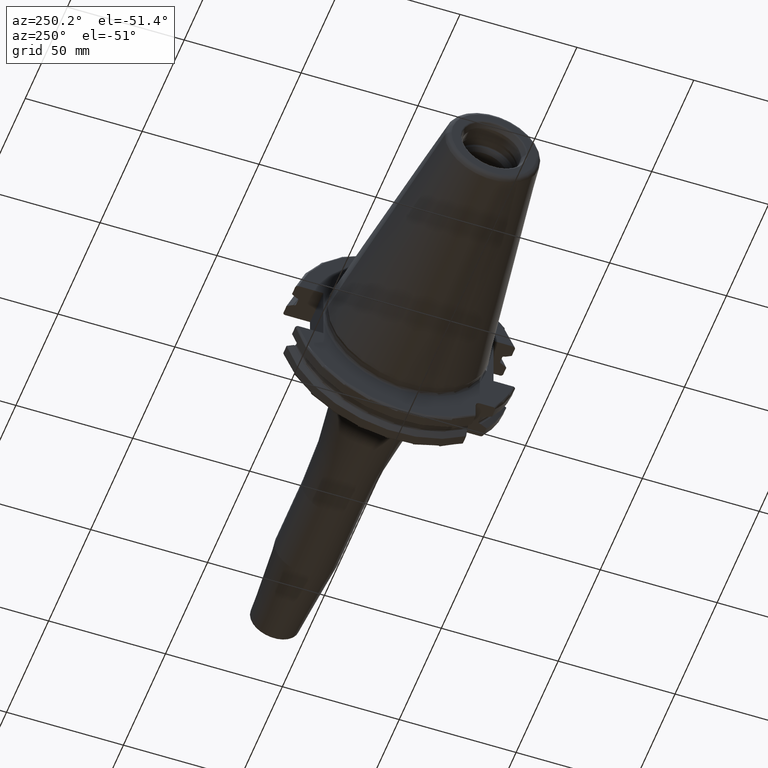
[diagram: clean part render]
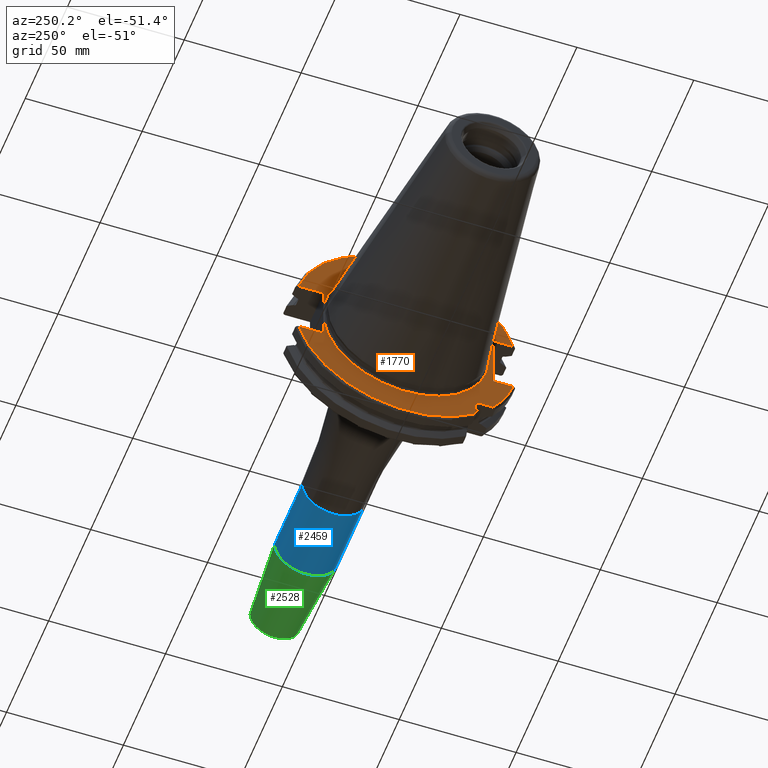
[diagram: same view with three faces highlighted in distinct colors, each labeled with its STEP entity id]
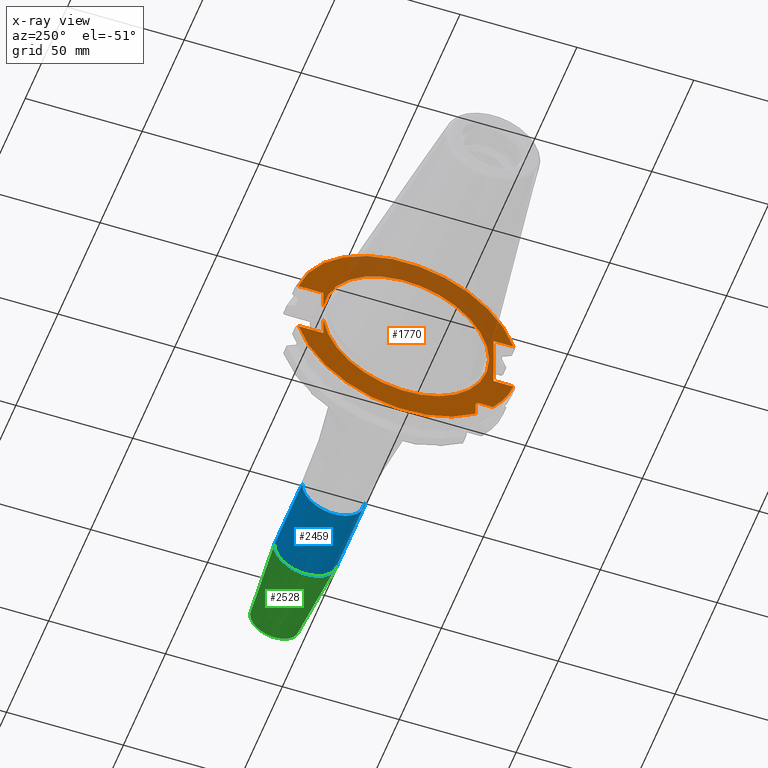
[diagram: x-ray of the same camera — body ghosted, the three highlighted faces saturated]
A machine part, auxiliary view with three faces highlighted in distinct colors.
The next image is the same camera in x-ray (body ghosted, the three faces saturated) — at least one of them is partly hidden behind the body in this view.
Their STEP definitions:

[orange] entity #1770 — the highlighted planar face has unit normal (1, 0, 0).
#117=CARTESIAN_POINT('',(3.2E0,0.E0,0.E0));
#118=DIRECTION('',(-1.E0,0.E0,0.E0));
#119=DIRECTION('',(0.E0,9.922698524245E-1,-1.240989120402E-1));
#120=AXIS2_PLACEMENT_3D('',#117,#118,#119);
#177=CARTESIAN_POINT('',(3.2E0,-3.16E1,-3.16E1));
#178=DIRECTION('',(1.E0,0.E0,0.E0));
#179=DIRECTION('',(0.E0,1.E0,0.E0));
#180=AXIS2_PLACEMENT_3D('',#177,#178,#179);
#182=DIRECTION('',(0.E0,-1.E0,0.E0));
#183=VECTOR('',#182,5.653810627237E0);
#184=CARTESIAN_POINT('',(3.2E0,-3.16E1,-2.985E1));
#185=LINE('',#184,#183);
#186=DIRECTION('',(0.E0,0.E0,1.E0));
#187=VECTOR('',#186,5.653810627237E0);
#188=CARTESIAN_POINT('',(3.2E0,-2.985E1,-3.725381062724E1));
#189=LINE('',#188,#187);
#190=CARTESIAN_POINT('',(3.2E0,0.E0,0.E0));
#191=DIRECTION('',(-1.E0,0.E0,0.E0));
#192=DIRECTION('',(0.E0,9.627964123359E-1,-2.702278083268E-1));
#193=AXIS2_PLACEMENT_3D('',#190,#191,#192);
#195=DIRECTION('',(0.E0,-1.E0,0.E0));
#196=VECTOR('',#195,1.066149373389E1);
#197=CARTESIAN_POINT('',(3.2E0,4.596149373389E1,-1.29E1));
#198=LINE('',#197,#196);
#199=DIRECTION('',(0.E0,0.E0,-1.E0));
#200=VECTOR('',#199,8.485181204172E0);
#201=CARTESIAN_POINT('',(3.2E0,3.53E1,-4.414818795828E0));
#202=LINE('',#201,#200);
#203=DIRECTION('',(0.E0,0.E0,-1.E0));
#204=VECTOR('',#203,8.485181204172E0);
#205=CARTESIAN_POINT('',(3.2E0,3.53E1,1.29E1));
#206=LINE('',#205,#204);
#207=DIRECTION('',(0.E0,-1.E0,0.E0));
#208=VECTOR('',#207,1.066149373389E1);
#209=CARTESIAN_POINT('',(3.2E0,4.596149373389E1,1.29E1));
#210=LINE('',#209,#208);
#211=CARTESIAN_POINT('',(3.2E0,0.E0,0.E0));
#212=DIRECTION('',(1.E0,0.E0,0.E0));
#213=DIRECTION('',(0.E0,9.627964123359E-1,2.702278083268E-1));
#214=AXIS2_PLACEMENT_3D('',#211,#212,#213);
#216=DIRECTION('',(0.E0,1.E0,0.E0));
#217=VECTOR('',#216,8.461493733886E0);
#218=CARTESIAN_POINT('',(3.2E0,-4.596149373389E1,1.29E1));
#219=LINE('',#218,#217);
#220=DIRECTION('',(0.E0,0.E0,1.E0));
#221=VECTOR('',#220,2.58E1);
#222=CARTESIAN_POINT('',(3.2E0,-3.75E1,-1.29E1));
#223=LINE('',#222,#221);
#224=DIRECTION('',(0.E0,1.E0,0.E0));
#225=VECTOR('',#224,8.461493733886E0);
#226=CARTESIAN_POINT('',(3.2E0,-4.596149373389E1,-1.29E1));
#227=LINE('',#226,#225);
#228=CARTESIAN_POINT('',(3.2E0,0.E0,0.E0));
#229=DIRECTION('',(-1.E0,0.E0,0.E0));
#230=DIRECTION('',(0.E0,-7.803888060170E-1,-6.252945797329E-1));
#231=AXIS2_PLACEMENT_3D('',#228,#229,#230);
#279=CARTESIAN_POINT('',(3.2E0,-3.725381062724E1,-2.985E1));
#891=CARTESIAN_POINT('',(3.2E0,0.E0,0.E0));
#892=DIRECTION('',(1.E0,0.E0,0.E0));
#893=DIRECTION('',(0.E0,9.922698524245E-1,1.240989120402E-1));
#894=AXIS2_PLACEMENT_3D('',#891,#892,#893);
#1238=CARTESIAN_POINT('',(3.2E0,-3.5575E1,0.E0));
#1240=VERTEX_POINT('',#1238);
#1372=CARTESIAN_POINT('',(3.2E0,4.596149373389E1,1.29E1));
#1373=CARTESIAN_POINT('',(3.2E0,3.53E1,1.29E1));
#1374=VERTEX_POINT('',#1372);
#1375=VERTEX_POINT('',#1373);
#1376=CARTESIAN_POINT('',(3.2E0,3.53E1,4.414818795828E0));
#1377=VERTEX_POINT('',#1376);
#1378=CARTESIAN_POINT('',(3.2E0,3.53E1,-4.414818795828E0));
#1379=CARTESIAN_POINT('',(3.2E0,3.53E1,-1.29E1));
#1380=VERTEX_POINT('',#1378);
#1381=VERTEX_POINT('',#1379);
#1382=CARTESIAN_POINT('',(3.2E0,4.596149373389E1,-1.29E1));
#1383=VERTEX_POINT('',#1382);
#1384=CARTESIAN_POINT('',(3.2E0,-4.596149373389E1,-1.29E1));
#1385=CARTESIAN_POINT('',(3.2E0,-3.75E1,-1.29E1));
#1386=VERTEX_POINT('',#1384);
#1387=VERTEX_POINT('',#1385);
#1388=CARTESIAN_POINT('',(3.2E0,-3.75E1,1.29E1));
#1389=VERTEX_POINT('',#1388);
#1390=CARTESIAN_POINT('',(3.2E0,-4.596149373389E1,1.29E1));
#1391=VERTEX_POINT('',#1390);
#1423=CARTESIAN_POINT('',(3.2E0,-2.985E1,-3.725381062724E1));
#1424=VERTEX_POINT('',#1423);
#1429=CARTESIAN_POINT('',(3.2E0,-2.985E1,-3.16E1));
#1430=CARTESIAN_POINT('',(3.2E0,-3.16E1,-2.985E1));
#1431=VERTEX_POINT('',#1429);
#1432=VERTEX_POINT('',#1430);
#1451=VERTEX_POINT('',#279);
#1738=CARTESIAN_POINT('',(3.2E0,0.E0,0.E0));
#1739=DIRECTION('',(1.E0,0.E0,0.E0));
#1740=DIRECTION('',(0.E0,-1.E0,0.E0));
#1741=AXIS2_PLACEMENT_3D('',#1738,#1739,#1740);
#1742=PLANE('',#1741);
#1744=ORIENTED_EDGE('',*,*,#1743,.F.);
#1745=ORIENTED_EDGE('',*,*,#1731,.F.);
#1746=ORIENTED_EDGE('',*,*,#1719,.F.);
#1748=ORIENTED_EDGE('',*,*,#1747,.F.);
#1750=ORIENTED_EDGE('',*,*,#1749,.T.);
#1751=ORIENTED_EDGE('',*,*,#1645,.F.);
#1752=ORIENTED_EDGE('',*,*,#1626,.T.);
#1754=ORIENTED_EDGE('',*,*,#1753,.F.);
#1755=ORIENTED_EDGE('',*,*,#1640,.F.);
#1757=ORIENTED_EDGE('',*,*,#1756,.F.);
#1759=ORIENTED_EDGE('',*,*,#1758,.T.);
#1761=ORIENTED_EDGE('',*,*,#1760,.T.);
#1763=ORIENTED_EDGE('',*,*,#1762,.F.);
#1765=ORIENTED_EDGE('',*,*,#1764,.F.);
#1767=ORIENTED_EDGE('',*,*,#1766,.F.);
#1768=EDGE_LOOP('',(#1744,#1745,#1746,#1748,#1750,#1751,#1752,#1754,#1755,#1757,
#1759,#1761,#1763,#1765,#1767));
#1769=FACE_OUTER_BOUND('',#1768,.F.);
#1770=ADVANCED_FACE('',(#1769),#1742,.F.);
#121=CIRCLE('',#120,3.5575E1);
#181=CIRCLE('',#180,1.75E0);
#194=CIRCLE('',#193,4.77375E1);
#215=CIRCLE('',#214,4.77375E1);
#232=CIRCLE('',#231,4.77375E1);
#895=CIRCLE('',#894,3.5575E1);
#1626=EDGE_CURVE('',#1380,#1240,#121,.T.);
#1640=EDGE_CURVE('',#1375,#1377,#206,.T.);
#1645=EDGE_CURVE('',#1380,#1381,#202,.T.);
#1719=EDGE_CURVE('',#1424,#1431,#189,.T.);
#1731=EDGE_CURVE('',#1431,#1432,#181,.T.);
#1743=EDGE_CURVE('',#1432,#1451,#185,.T.);
#1747=EDGE_CURVE('',#1383,#1424,#194,.T.);
#1749=EDGE_CURVE('',#1383,#1381,#198,.T.);
#1753=EDGE_CURVE('',#1377,#1240,#895,.T.);
#1756=EDGE_CURVE('',#1374,#1375,#210,.T.);
#1758=EDGE_CURVE('',#1374,#1391,#215,.T.);
#1760=EDGE_CURVE('',#1391,#1389,#219,.T.);
#1762=EDGE_CURVE('',#1387,#1389,#223,.T.);
#1764=EDGE_CURVE('',#1386,#1387,#227,.T.);
#1766=EDGE_CURVE('',#1451,#1386,#232,.T.);

[blue] entity #2459 — the highlighted cylindrical surface (edge-blend (fillet) strip) has radius 13.5 mm, axis along (1, 0, 0).
#926=CARTESIAN_POINT('',(8.905E1,0.E0,0.E0));
#927=DIRECTION('',(1.E0,0.E0,0.E0));
#928=DIRECTION('',(0.E0,-1.E0,0.E0));
#929=AXIS2_PLACEMENT_3D('',#926,#927,#928);
#931=DIRECTION('',(-1.E0,0.E0,0.E0));
#932=VECTOR('',#931,3.283138579148E1);
#933=CARTESIAN_POINT('',(1.218813857915E2,-1.35E1,0.E0));
#934=LINE('',#933,#932);
#935=CARTESIAN_POINT('',(1.218813857915E2,0.E0,0.E0));
#936=DIRECTION('',(-1.E0,0.E0,0.E0));
#937=DIRECTION('',(0.E0,1.E0,0.E0));
#938=AXIS2_PLACEMENT_3D('',#935,#936,#937);
#940=DIRECTION('',(-1.E0,0.E0,0.E0));
#941=VECTOR('',#940,3.283138579148E1);
#942=CARTESIAN_POINT('',(1.218813857915E2,1.35E1,0.E0));
#943=LINE('',#942,#941);
#1452=CARTESIAN_POINT('',(1.218813857915E2,1.35E1,0.E0));
#1453=CARTESIAN_POINT('',(1.218813857915E2,-1.35E1,0.E0));
#1454=VERTEX_POINT('',#1452);
#1455=VERTEX_POINT('',#1453);
#1472=CARTESIAN_POINT('',(8.905E1,1.35E1,0.E0));
#1473=CARTESIAN_POINT('',(8.905E1,-1.35E1,0.E0));
#1474=VERTEX_POINT('',#1472);
#1475=VERTEX_POINT('',#1473);
#2445=CARTESIAN_POINT('',(1.20025E1,0.E0,0.E0));
#2446=DIRECTION('',(1.E0,0.E0,0.E0));
#2447=DIRECTION('',(0.E0,-1.E0,0.E0));
#2448=AXIS2_PLACEMENT_3D('',#2445,#2446,#2447);
#2449=CYLINDRICAL_SURFACE('',#2448,1.35E1);
#2450=ORIENTED_EDGE('',*,*,#2439,.F.);
#2452=ORIENTED_EDGE('',*,*,#2451,.F.);
#2454=ORIENTED_EDGE('',*,*,#2453,.F.);
#2456=ORIENTED_EDGE('',*,*,#2455,.T.);
#2457=EDGE_LOOP('',(#2450,#2452,#2454,#2456));
#2458=FACE_OUTER_BOUND('',#2457,.F.);
#2459=ADVANCED_FACE('',(#2458),#2449,.T.);
#930=CIRCLE('',#929,1.35E1);
#939=CIRCLE('',#938,1.35E1);
#2439=EDGE_CURVE('',#1475,#1474,#930,.T.);
#2451=EDGE_CURVE('',#1455,#1475,#934,.T.);
#2453=EDGE_CURVE('',#1454,#1455,#939,.T.);
#2455=EDGE_CURVE('',#1454,#1474,#943,.T.);

[green] entity #2528 — the highlighted conical surface has half-angle 4.5 deg.
#935=CARTESIAN_POINT('',(1.218813857915E2,0.E0,0.E0));
#936=DIRECTION('',(-1.E0,0.E0,0.E0));
#937=DIRECTION('',(0.E0,1.E0,0.E0));
#938=AXIS2_PLACEMENT_3D('',#935,#936,#937);
#969=CARTESIAN_POINT('',(1.590784590957E2,0.E0,0.E0));
#970=DIRECTION('',(-1.E0,0.E0,0.E0));
#971=DIRECTION('',(0.E0,1.E0,0.E0));
#972=AXIS2_PLACEMENT_3D('',#969,#970,#971);
#974=DIRECTION('',(-9.969173337331E-1,7.845909572785E-2,1.323262560744E-13));
#975=VECTOR('',#974,3.731209403789E1);
#976=CARTESIAN_POINT('',(1.590784590957E2,1.057252684207E1,
-4.935716437151E-12));
#977=LINE('',#976,#975);
#978=DIRECTION('',(-9.969173337331E-1,-7.845909572785E-2,-1.323175808637E-13));
#979=VECTOR('',#978,3.731209403789E1);
#980=CARTESIAN_POINT('',(1.590784590957E2,-1.057252684207E1,
4.935392746872E-12));
#981=LINE('',#980,#979);
#1452=CARTESIAN_POINT('',(1.218813857915E2,1.35E1,0.E0));
#1453=CARTESIAN_POINT('',(1.218813857915E2,-1.35E1,0.E0));
#1454=VERTEX_POINT('',#1452);
#1455=VERTEX_POINT('',#1453);
#1456=CARTESIAN_POINT('',(1.590784590957E2,1.057252684207E1,0.E0));
#1457=CARTESIAN_POINT('',(1.590784590957E2,-1.057252684207E1,0.E0));
#1458=VERTEX_POINT('',#1456);
#1459=VERTEX_POINT('',#1457);
#2517=CARTESIAN_POINT('',(1.404799224436E2,0.E0,0.E0));
#2518=DIRECTION('',(-1.E0,0.E0,0.E0));
#2519=DIRECTION('',(0.E0,1.E0,0.E0));
#2520=AXIS2_PLACEMENT_3D('',#2517,#2518,#2519);
#2521=CONICAL_SURFACE('',#2520,1.203626342104E1,4.5E0);
#2522=ORIENTED_EDGE('',*,*,#2508,.F.);
#2523=ORIENTED_EDGE('',*,*,#2483,.T.);
#2524=ORIENTED_EDGE('',*,*,#2453,.T.);
#2525=ORIENTED_EDGE('',*,*,#2480,.F.);
#2526=EDGE_LOOP('',(#2522,#2523,#2524,#2525));
#2527=FACE_OUTER_BOUND('',#2526,.F.);
#2528=ADVANCED_FACE('',(#2527),#2521,.T.);
#939=CIRCLE('',#938,1.35E1);
#973=CIRCLE('',#972,1.057252684207E1);
#2453=EDGE_CURVE('',#1454,#1455,#939,.T.);
#2480=EDGE_CURVE('',#1459,#1455,#981,.T.);
#2483=EDGE_CURVE('',#1458,#1454,#977,.T.);
#2508=EDGE_CURVE('',#1458,#1459,#973,.T.);